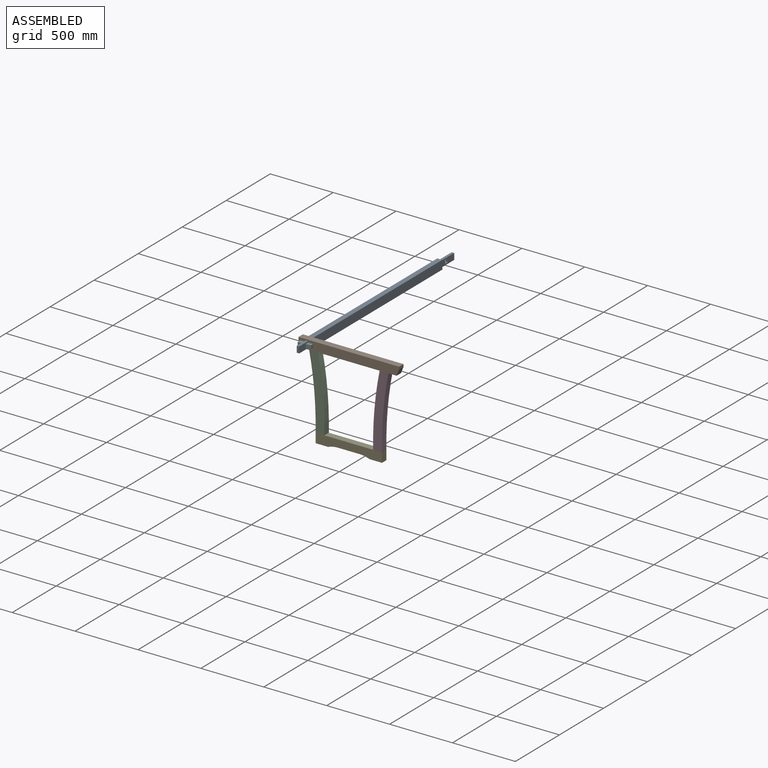
[diagram: assembled view]
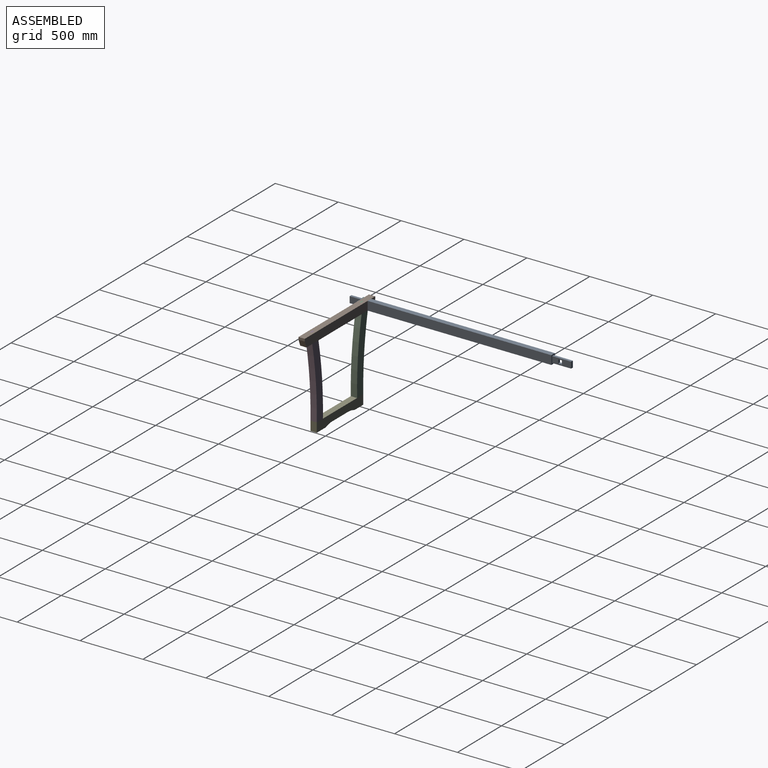
[diagram: assembled view, second angle]
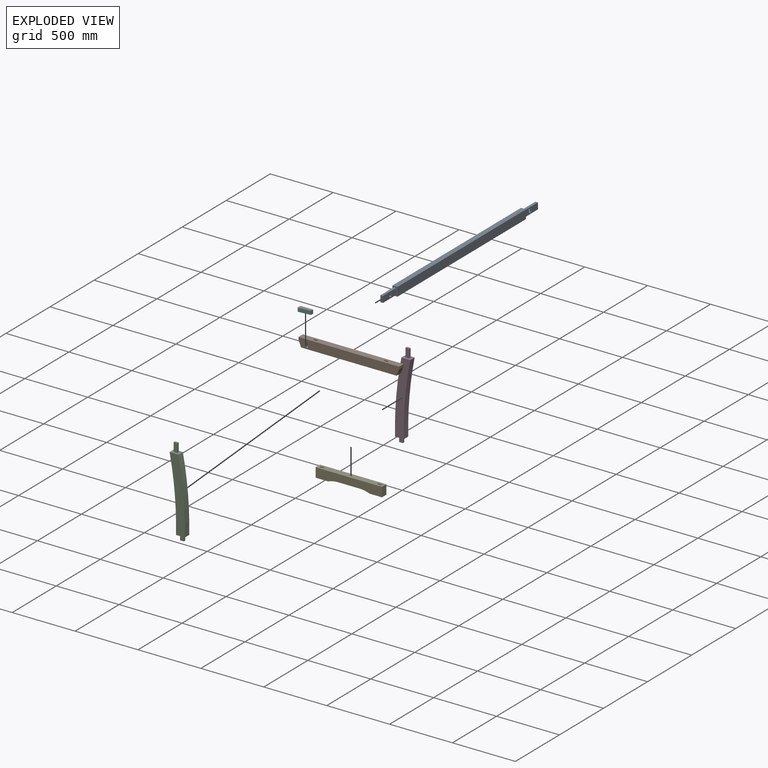
[diagram: exploded view]
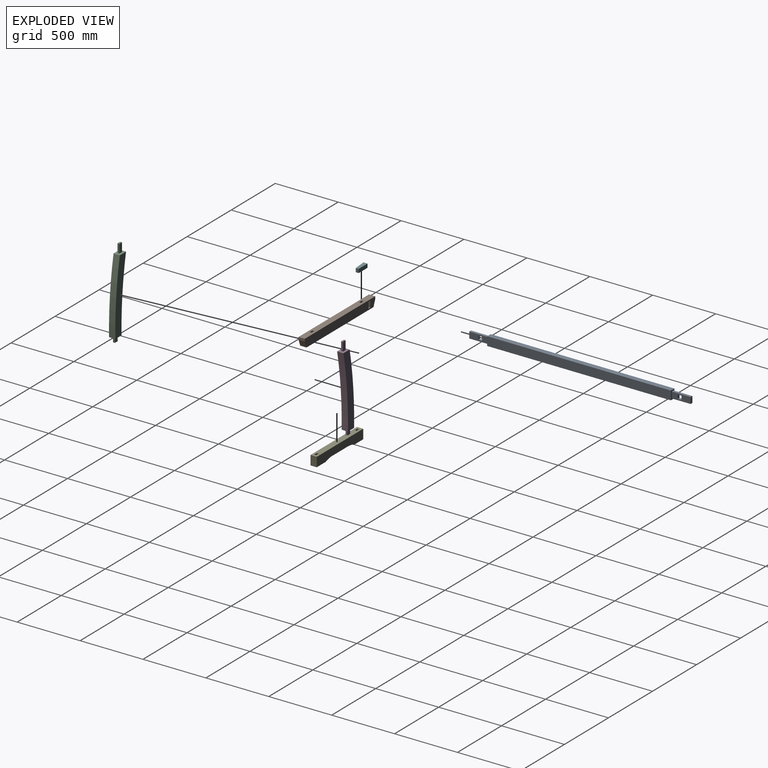
[diagram: exploded view, second angle]
ASSEMBLY  parts=6 mates=5
PART A: 24 faces, bbox 1760x40x70 mm
  f0: plane 150x50mm, normal (0,1,0), area 6566.2mm2, adj f12,f13,f14,f15,f20,f21,f22,f23
  f1: plane 150x50mm, normal (0,-1,0), area 6618.7mm2, adj f12,f13,f14,f15,f20,f21,f22,f23
  f2: plane 150x50mm, normal (0,-1,0), area 6618.7mm2, adj f8,f9,f10,f11,f16,f17,f18,f19
  f3: plane 150x50mm, normal (0,1,0), area 6566.2mm2, adj f8,f9,f10,f11,f16,f17,f18,f19
  f4: plane 1460x40mm, normal (0,0,1), area 58400mm2, adj f6,f7,f10,f14
  f5: plane 1460x40mm, normal (0,0,-1), area 58400mm2, adj f6,f7,f10,f14
  f6: plane 1460x70mm, normal (0,1,0), area 102200mm2, adj f4,f5,f10,f14
  f7: plane 1460x70mm, normal (0,-1,0), area 102200mm2, adj f4,f5,f10,f14
  f8: plane 150x20mm, normal (0,0,1), area 3000mm2, adj f2,f3,f10,f11
  f9: plane 150x20mm, normal (0,0,-1), area 3000mm2, adj f2,f3,f10,f11
  f10: plane 70x40mm, normal (-1,0,0), area 1800mm2, adj f2,f3,f4,f5,f6,f7,f8,f9
  f11: plane 50x20mm, normal (-1,0,0), area 1000mm2, adj f2,f3,f8,f9
  f12: plane 150x20mm, normal (0,0,1), area 3000mm2, adj f0,f1,f14,f15
  f13: plane 150x20mm, normal (0,0,-1), area 3000mm2, adj f0,f1,f14,f15
  f14: plane 70x40mm, normal (1,0,0), area 1800mm2, adj f0,f1,f4,f5,f6,f7,f12,f13
  f15: plane 50x20mm, normal (1,0,0), area 1000mm2, adj f0,f1,f12,f13
  f16: plane 31.13x20mm, normal (0,0,-1), area 605mm2, adj f2,f3,f17,f19
  f17: plane 30x20mm, normal (1,0.09,0), area 602.3mm2, adj f2,f3,f16,f18
  f18: plane 31.13x20mm, normal (0,0,1), area 605mm2, adj f2,f3,f17,f19
  f19: plane 30x20mm, normal (-1,0,0), area 600mm2, adj f2,f3,f16,f18
  f20: plane 31.13x20mm, normal (0,0,-1), area 605mm2, adj f0,f1,f21,f23
  f21: plane 30x20mm, normal (1,0,0), area 600mm2, adj f0,f1,f20,f22
  f22: plane 31.13x20mm, normal (0,0,1), area 605mm2, adj f0,f1,f21,f23
  f23: plane 30x20mm, normal (-1,0.09,0), area 602.3mm2, adj f0,f1,f20,f22
PART B: 20 faces, bbox 800x50x70 mm
  f0: plane 800x50mm, normal (0,0,1), area 39092mm2, adj f2,f9,f10,f11,f12,f13,f14,f15
  f1: plane 760x50mm, normal (0,0,-1), area 37092mm2, adj f3,f4,f10,f11,f12,f13,f14,f15
  f2: plane 50x20mm, normal (-1,0,0), area 1000mm2, adj f0,f3,f10,f11
  f3: cylinder r=2200mm len=50mm, axis (0,-1,0), area 2692.6mm2, adj f1,f2,f10,f11
  f4: cylinder r=2200mm len=50mm, axis (0,-1,0), area 2692.6mm2, adj f1,f9,f10,f11
  f5: plane 50x50mm, normal (1,0,0), area 2500mm2, adj f6,f8,f10,f11
  f6: plane 50x20mm, normal (0,0,-1), area 1000mm2, adj f5,f7,f10,f11
  f7: plane 50x50mm, normal (-1,0,0), area 2500mm2, adj f6,f8,f10,f11
  f8: plane 50x20mm, normal (0,0,1), area 1000mm2, adj f5,f7,f10,f11
  f9: plane 50x20mm, normal (1,0,0), area 1000mm2, adj f0,f4,f10,f11
  f10: plane 800x70mm, normal (0,1,0), area 53988.2mm2, adj f0,f1,f2,f3,f4,f5,f6,f7
  f11: plane 800x70mm, normal (0,-1,0), area 53988.2mm2, adj f0,f1,f2,f3,f4,f5,f6,f7
  f12: plane 70x30.27mm, normal (0,1,0), area 2118.7mm2, adj f0,f1,f13,f15
  f13: plane 70x15mm, normal (1,0,0), area 1050mm2, adj f0,f1,f12,f14
  f14: plane 70x30.27mm, normal (0,-1,0), area 2118.7mm2, adj f0,f1,f13,f15
  f15: plane 70x15mm, normal (-1,0,0), area 1050mm2, adj f0,f1,f12,f14
  f16: plane 70x30.27mm, normal (0,1,0), area 2118.7mm2, adj f0,f1,f17,f19
  f17: plane 70x15mm, normal (1,0,0), area 1050mm2, adj f0,f1,f16,f18
  f18: plane 70x30.27mm, normal (0,-1,0), area 2118.7mm2, adj f0,f1,f17,f19
  f19: plane 70x15mm, normal (-1,0,0), area 1050mm2, adj f0,f1,f16,f18
PART C: 16 faces, bbox 121.8x50x692 mm
  f0: plane 40x15mm, normal (1,0,0), area 600mm2, adj f3,f11,f12,f13
  f1: plane 70x15mm, normal (1,0,0), area 1050mm2, adj f2,f9,f14,f15
  f2: plane 30.27x15mm, normal (0,0,1), area 454mm2, adj f1,f4,f14,f15
  f3: plane 30.27x15mm, normal (0,0,-1), area 454mm2, adj f0,f5,f12,f13
  f4: plane 70x15mm, normal (-1,0,0), area 1050mm2, adj f2,f9,f14,f15
  f5: plane 40x15mm, normal (-1,0,0), area 600mm2, adj f3,f11,f12,f13
  f6: plane 582x121.79mm, normal (0,1,0), area 40895.6mm2, adj f8,f9,f10,f11
  f7: plane 582x121.79mm, normal (0,-1,0), area 40895.6mm2, adj f8,f9,f10,f11
  f8: cylinder r=2700mm len=582mm, axis (0,-1,0), area 29268.4mm2, adj f6,f7,f9,f11
  f9: plane 70.27x50mm, normal (0,0,1), area 3059.4mm2, adj f1,f4,f6,f7,f8,f10,f14,f15
  f10: cylinder r=2700mm len=582mm, axis (0,-1,0), area 29268.4mm2, adj f6,f7,f9,f11
  f11: plane 70.27x50mm, normal (0,0,-1), area 3059.4mm2, adj f0,f5,f6,f7,f8,f10,f12,f13
  f12: plane 40x30.27mm, normal (0,-1,0), area 1210.7mm2, adj f0,f3,f5,f11
  f13: plane 40x30.27mm, normal (0,1,0), area 1210.7mm2, adj f0,f3,f5,f11
  f14: plane 70x30.27mm, normal (0,1,0), area 2118.7mm2, adj f1,f2,f4,f9
  f15: plane 70x30.27mm, normal (0,-1,0), area 2118.7mm2, adj f1,f2,f4,f9
PART D: same geometry as C
PART E: 20 faces, bbox 528x50x75 mm
  f0: plane 528x50mm, normal (0,0,1), area 25497.1mm2, adj f2,f3,f6,f7,f8,f9,f10,f11
  f1: plane 100x50mm, normal (0,0,-1), area 5000mm2, adj f2,f6,f7,f18
  f2: plane 75x50mm, normal (1,0,0), area 3750mm2, adj f0,f1,f6,f7
  f3: plane 75x50mm, normal (-1,0,0), area 3750mm2, adj f0,f4,f6,f7
  f4: plane 100x50mm, normal (0,0,-1), area 5000mm2, adj f3,f6,f7,f19
  f5: plane 178x50mm, normal (0,0,-1), area 8900mm2, adj f6,f7,f18,f19
  f6: plane 528x75mm, normal (0,1,0), area 35418.1mm2, adj f0,f1,f2,f3,f4,f5,f18,f19
  f7: plane 528x75mm, normal (0,-1,0), area 35418.1mm2, adj f0,f1,f2,f3,f4,f5,f18,f19
  f8: plane 40x30.1mm, normal (0,-1,0), area 1203.8mm2, adj f0,f9,f11,f12
  f9: plane 40x15mm, normal (1,0,0), area 600mm2, adj f0,f8,f10,f12
  f10: plane 40x30.1mm, normal (0,1,0), area 1203.8mm2, adj f0,f9,f11,f12
  f11: plane 40x15mm, normal (-1,0,0), area 600mm2, adj f0,f8,f10,f12
  f12: plane 30.1x15mm, normal (0,0,1), area 451.4mm2, adj f8,f9,f10,f11
  f13: plane 40x30.1mm, normal (0,-1,0), area 1203.8mm2, adj f0,f14,f16,f17
  f14: plane 40x15mm, normal (1,0,0), area 600mm2, adj f0,f13,f15,f17
  f15: plane 40x30.1mm, normal (0,1,0), area 1203.8mm2, adj f0,f14,f16,f17
  f16: plane 40x15mm, normal (-1,0,0), area 600mm2, adj f0,f13,f15,f17
  f17: plane 30.1x15mm, normal (0,0,1), area 451.4mm2, adj f13,f14,f15,f16
  f18: cylinder r=195mm len=75mm, axis (0,1,0), area 3849.2mm2, adj f1,f5,f6,f7
  f19: cylinder r=195mm len=75mm, axis (0,1,0), area 3849.2mm2, adj f4,f5,f6,f7
PART F: 6 faces, bbox 32.6x30x100 mm
  f0: plane 32.62x30mm, normal (0,0,1), area 978.7mm2, adj f1,f3,f4,f5
  f1: plane 100x30mm, normal (-1,0,-0.09), area 3011.5mm2, adj f0,f2,f4,f5
  f2: plane 30x23.88mm, normal (0,0,-1), area 716.3mm2, adj f1,f3,f4,f5
  f3: plane 100x30mm, normal (1,0,0), area 3000mm2, adj f0,f2,f4,f5
  f4: plane 100x32.62mm, normal (0,1,0), area 2825mm2, adj f0,f1,f2,f3
  f5: plane 100x32.62mm, normal (0,-1,0), area 2825mm2, adj f0,f1,f2,f3
PLACE A rot(axis=(0,0,1),90deg) t=(-1059.36,1025.83,506.43)mm
PLACE B t=(-801.91,243.98,408.54)mm
PLACE C t=(-845.24,243.98,229.22)mm
PLACE D rot(axis=(0,0,1),180deg) t=(-645.69,293.98,229.22)mm
PLACE E t=(-693.37,243.98,-279.95)mm
PLACE F rot(axis=(-0.58,-0.58,0.58),120deg) t=(-1101.19,263.88,451.87)mm
MATE fastened C.f3 <-> E.f17  axis (0,0,-1) through (-974.42,268.98,-220.13)mm
MATE fastened D.f3 <-> E.f12  axis (0,0,-1) through (-516.51,268.98,-220.13)mm
MATE fastened F.f1 <-> A.f17  axis (0.09,-1,0) through (-1079.36,215.73,436.87)mm
MATE fastened C.f9 <-> B.f1  axis (0,0,1) through (-1040.47,261.48,401.87)mm
MATE fastened A.f10 <-> B.f10  axis (0,-1,0) through (-1089.36,293.98,461.87)mm
